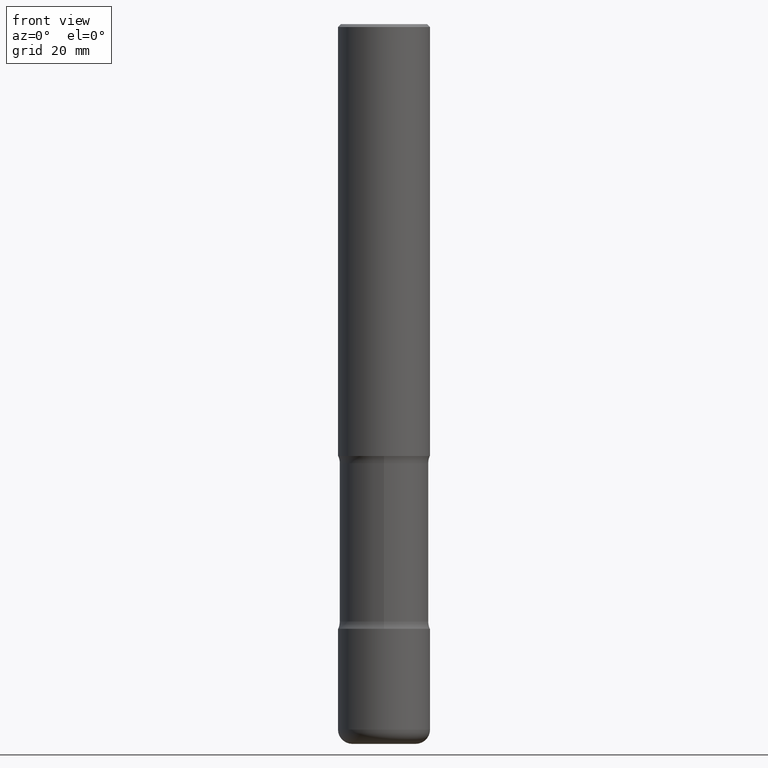
[diagram: clean part render]
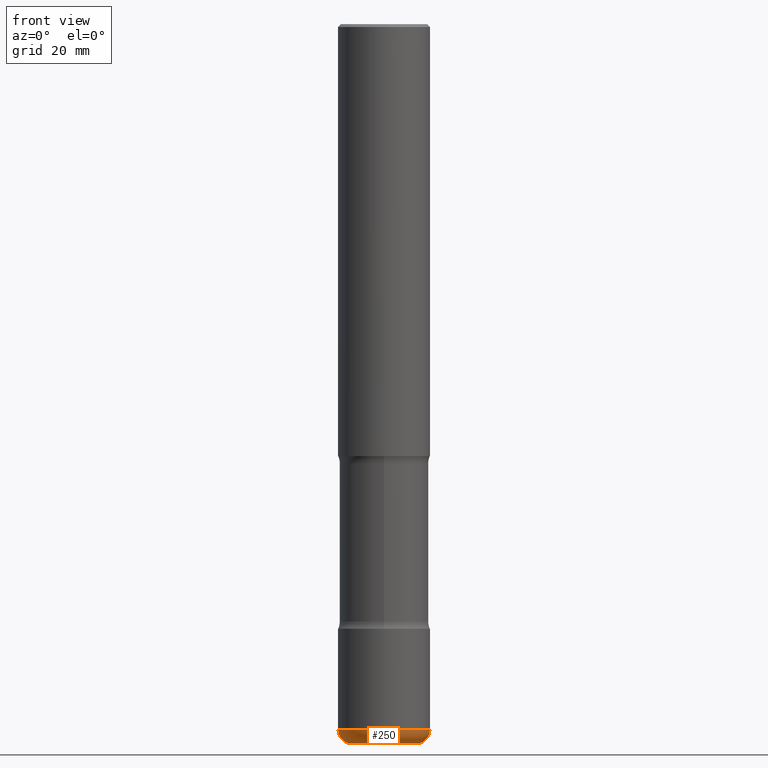
[diagram: same view with one face highlighted and labeled with its STEP entity id]
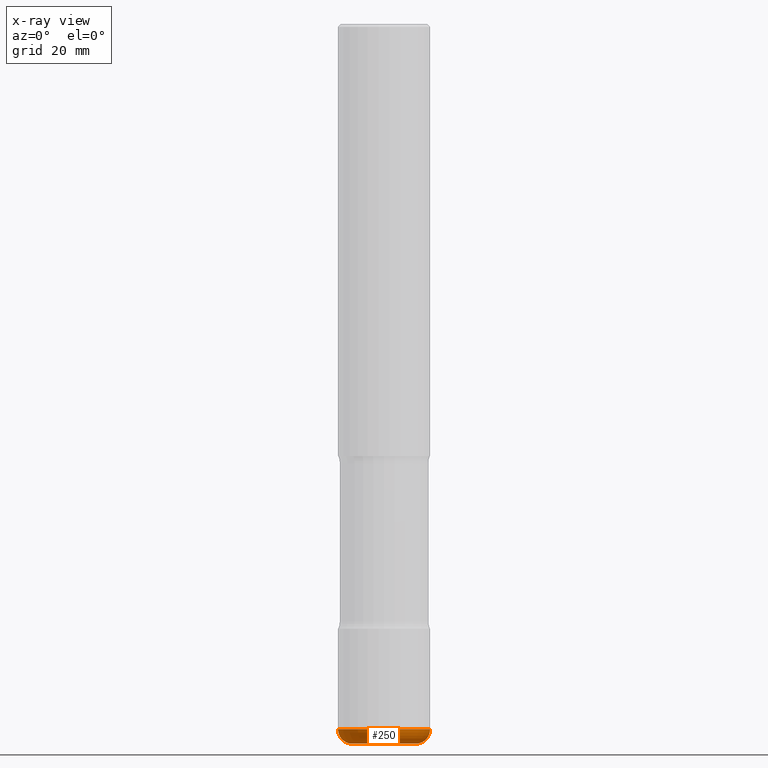
[diagram: x-ray of the same camera — body ghosted, the highlighted face saturated]
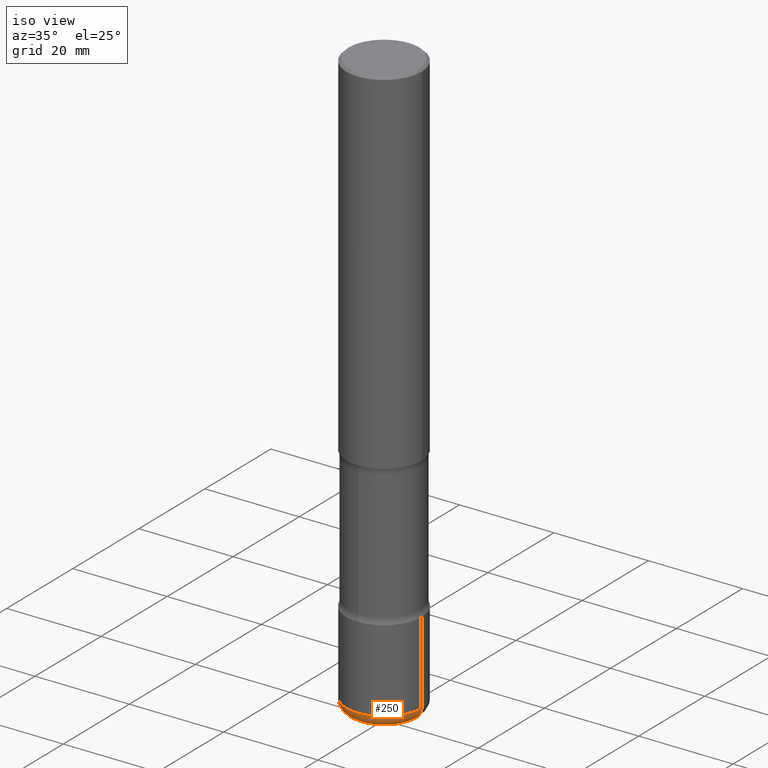
[diagram: same view with one face highlighted and labeled with its STEP entity id]
A machine part, front view. The second image highlights one B-rep face of the part: STEP entity #250.
The next image is the same camera in x-ray: the body ghosted, the highlighted face saturated — about 0% of this face is hidden behind the body in this view.
A second angle (iso view) of the same face is appended — the face is thin or edge-on in the first view.
In plain terms, the highlighted toroidal blend (fillet) surface has major radius 5.5004 mm and minor (blend) radius 2.4994 mm.
Its self-contained STEP definition (entity closure, byte-faithful):
#9 = EDGE_CURVE ( 'NONE', #260, #82, #488, .T. ) ;
#27 = AXIS2_PLACEMENT_3D ( 'NONE', #353, #92, #54 ) ;
#46 = CARTESIAN_POINT ( 'NONE',  ( 1.203488563587891146E-28, -1.718262711284877024E-14, -4.921299999999999564 ) ) ;
#50 = DIRECTION ( 'NONE',  ( -2.445468806185136597E-29, 3.491481338843145583E-15, 1.000000000000000000 ) ) ;
#54 = DIRECTION ( 'NONE',  ( -1.000000000000000000, 7.105427357600994759E-15, 0.000000000000000000 ) ) ;
#58 = CARTESIAN_POINT ( 'NONE',  ( 0.3149500000000002298, -1.903834944444389716E-14, -4.822899999999999743 ) ) ;
#64 = CIRCLE ( 'NONE', #217, 0.3149500000000001743 ) ;
#80 = VERTEX_POINT ( 'NONE', #58 ) ;
#82 = VERTEX_POINT ( 'NONE', #403 ) ;
#92 = DIRECTION ( 'NONE',  ( 7.105427357601001859E-15, 1.000000000000000000, -3.491481338843145583E-15 ) ) ;
#108 = ORIENTED_EDGE ( 'NONE', *, *, #380, .F. ) ;
#113 = EDGE_CURVE ( 'NONE', #336, #80, #176, .T. ) ;
#116 = CARTESIAN_POINT ( 'NONE',  ( 1.179425150535029431E-28, -1.683906534910660571E-14, -4.822899999999999743 ) ) ;
#131 = DIRECTION ( 'NONE',  ( 1.000000000000000000, -6.982962677686256455E-15, 0.000000000000000000 ) ) ;
#156 = EDGE_CURVE ( 'NONE', #260, #336, #210, .T. ) ;
#161 = DIRECTION ( 'NONE',  ( 1.000000000000000000, -6.982962677686272233E-15, 0.000000000000000000 ) ) ;
#176 = CIRCLE ( 'NONE', #498, 0.09840000000000007074 ) ;
#210 = CIRCLE ( 'NONE', #531, 0.2165500000000002145 ) ;
#217 = AXIS2_PLACEMENT_3D ( 'NONE', #116, #373, #161 ) ;
#223 = DIRECTION ( 'NONE',  ( 1.000000000000000000, -6.982962677686269866E-15, 4.883557194083114022E-29 ) ) ;
#250 = ADVANCED_FACE ( 'NONE', ( #355 ), #333, .T. ) ;
#258 = EDGE_LOOP ( 'NONE', ( #359, #513, #530, #108 ) ) ;
#260 = VERTEX_POINT ( 'NONE', #500 ) ;
#266 = CARTESIAN_POINT ( 'NONE',  ( 0.2165500000000002145, -1.869478768070173264E-14, -4.921299999999999564 ) ) ;
#274 = CARTESIAN_POINT ( 'NONE',  ( 1.179425150535029431E-28, -1.683906534910660571E-14, -4.822899999999999743 ) ) ;
#333 = TOROIDAL_SURFACE ( 'NONE', #479, 0.2165500000000002145, 0.09840000000000008462 ) ;
#336 = VERTEX_POINT ( 'NONE', #266 ) ;
#351 = DIRECTION ( 'NONE',  ( -2.445468806185136597E-29, 3.491481338843145583E-15, 1.000000000000000000 ) ) ;
#353 = CARTESIAN_POINT ( 'NONE',  ( -0.2165500000000002145, -1.530038505481810704E-14, -4.822899999999999743 ) ) ;
#355 = FACE_OUTER_BOUND ( 'NONE', #258, .T. ) ;
#359 = ORIENTED_EDGE ( 'NONE', *, *, #9, .F. ) ;
#373 = DIRECTION ( 'NONE',  ( -2.445468806185136597E-29, 3.491481338843145583E-15, 1.000000000000000000 ) ) ;
#380 = EDGE_CURVE ( 'NONE', #82, #80, #64, .T. ) ;
#382 = DIRECTION ( 'NONE',  ( 1.000000000000000000, -6.982962677686266711E-15, 0.000000000000000000 ) ) ;
#403 = CARTESIAN_POINT ( 'NONE',  ( -0.3149500000000002298, -1.460121100283016973E-14, -4.822899999999999743 ) ) ;
#439 = CARTESIAN_POINT ( 'NONE',  ( 0.2165500000000002145, -1.835122591695957127E-14, -4.822899999999999743 ) ) ;
#479 = AXIS2_PLACEMENT_3D ( 'NONE', #274, #351, #223 ) ;
#488 = CIRCLE ( 'NONE', #27, 0.09840000000000007074 ) ;
#498 = AXIS2_PLACEMENT_3D ( 'NONE', #439, #522, #131 ) ;
#500 = CARTESIAN_POINT ( 'NONE',  ( -0.2165500000000002145, -1.512257891069522064E-14, -4.921299999999999564 ) ) ;
#513 = ORIENTED_EDGE ( 'NONE', *, *, #156, .T. ) ;
#522 = DIRECTION ( 'NONE',  ( -6.982962677686266711E-15, -1.000000000000000000, 3.491481338843145583E-15 ) ) ;
#530 = ORIENTED_EDGE ( 'NONE', *, *, #113, .T. ) ;
#531 = AXIS2_PLACEMENT_3D ( 'NONE', #46, #50, #382 ) ;